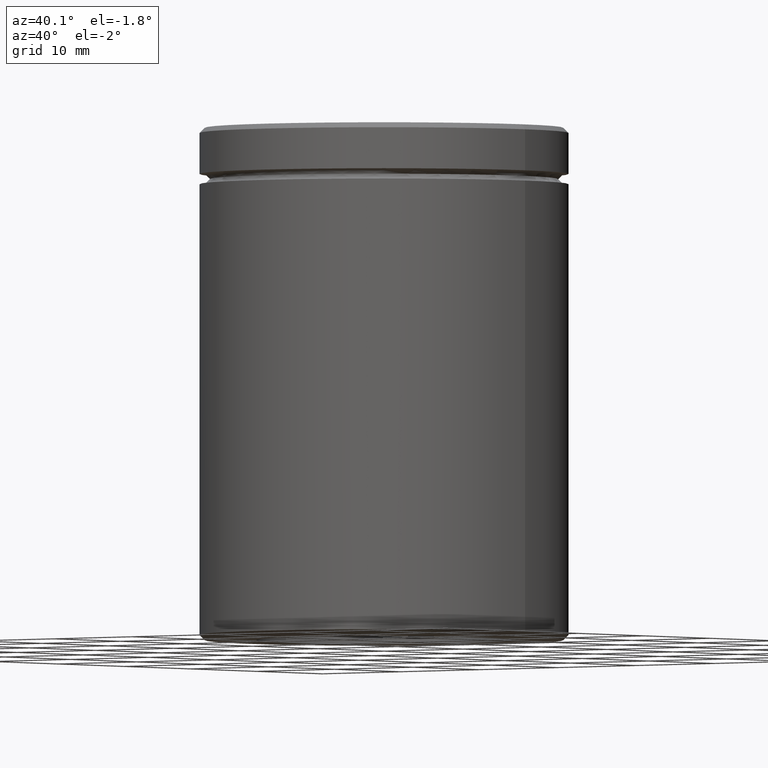
[diagram: clean part render]
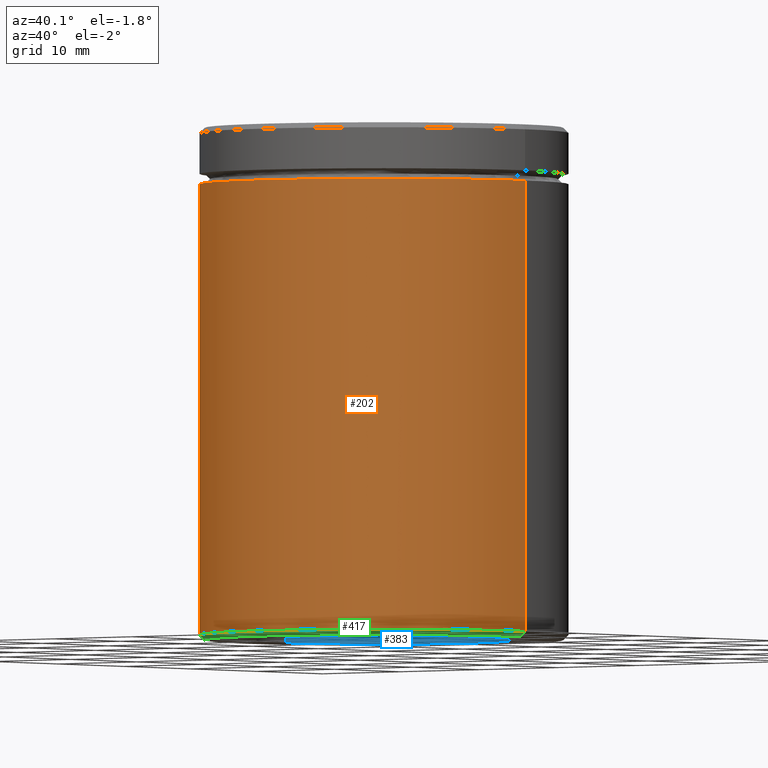
[diagram: same view with three faces highlighted in distinct colors, each labeled with its STEP entity id]
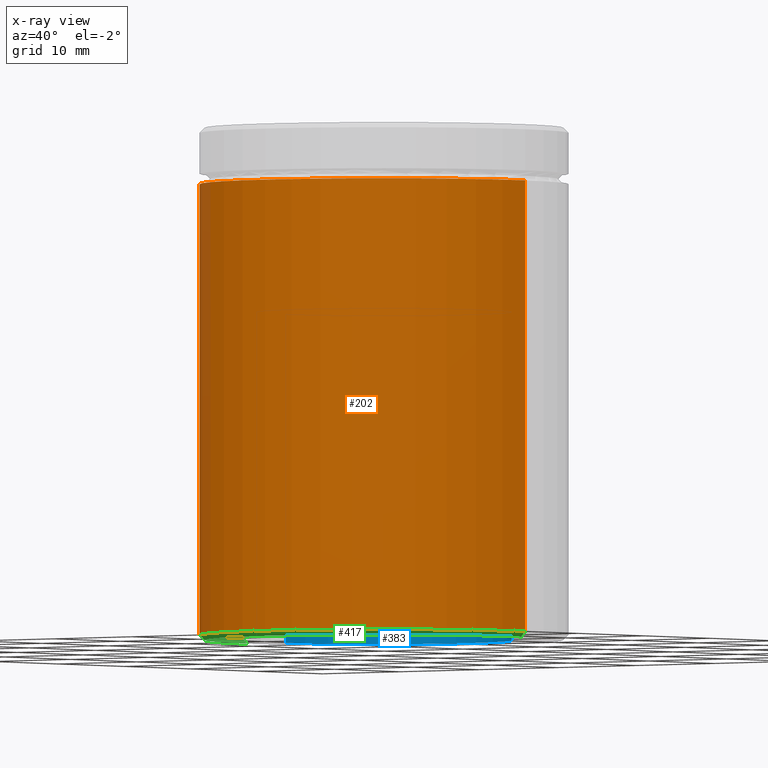
[diagram: x-ray of the same camera — body ghosted, the three highlighted faces saturated]
A machine part, auxiliary view with three faces highlighted in distinct colors.
The next image is the same camera in x-ray (body ghosted, the three faces saturated) — at least one of them is partly hidden behind the body in this view.
Their STEP definitions:

[orange] entity #202 — the highlighted cylindrical surface (partial cylindrical patch) has radius 18 mm, axis along (-0, -0, 1).
#37 = CARTESIAN_POINT ( 'NONE',  ( 18.00000000000000000, 0.000000000000000000, -5.500000000000000000 ) ) ;
#57 = VERTEX_POINT ( 'NONE', #260 ) ;
#85 = CYLINDRICAL_SURFACE ( 'NONE', #564, 18.00000000000000000 ) ;
#88 = FACE_OUTER_BOUND ( 'NONE', #529, .T. ) ;
#108 = VECTOR ( 'NONE', #561, 1000.000000000000000 ) ;
#113 = EDGE_CURVE ( 'NONE', #290, #265, #332, .T. ) ;
#117 = CARTESIAN_POINT ( 'NONE',  ( 18.00000000000000000, 0.000000000000000000, 0.000000000000000000 ) ) ;
#150 = EDGE_CURVE ( 'NONE', #57, #265, #207, .T. ) ;
#156 = CARTESIAN_POINT ( 'NONE',  ( 0.000000000000000000, 0.000000000000000000, -5.500000000000000000 ) ) ;
#170 = DIRECTION ( 'NONE',  ( 1.000000000000000000, 0.000000000000000000, 0.000000000000000000 ) ) ;
#174 = AXIS2_PLACEMENT_3D ( 'NONE', #156, #524, #301 ) ;
#176 = CIRCLE ( 'NONE', #428, 18.00000000000000000 ) ;
#202 = ADVANCED_FACE ( 'NONE', ( #88 ), #85, .T. ) ;
#207 = LINE ( 'NONE', #117, #108 ) ;
#217 = CARTESIAN_POINT ( 'NONE',  ( 0.000000000000000000, 0.000000000000000000, -49.50000000000000000 ) ) ;
#229 = DIRECTION ( 'NONE',  ( -0.000000000000000000, -0.000000000000000000, 1.000000000000000000 ) ) ;
#235 = VECTOR ( 'NONE', #439, 1000.000000000000000 ) ;
#236 = ORIENTED_EDGE ( 'NONE', *, *, #113, .F. ) ;
#259 = CARTESIAN_POINT ( 'NONE',  ( -18.00000000000000000, 2.204364238465235428E-15, -49.50000000000000000 ) ) ;
#260 = CARTESIAN_POINT ( 'NONE',  ( 18.00000000000000000, 0.000000000000000000, -49.50000000000000000 ) ) ;
#265 = VERTEX_POINT ( 'NONE', #37 ) ;
#290 = VERTEX_POINT ( 'NONE', #523 ) ;
#301 = DIRECTION ( 'NONE',  ( 1.000000000000000000, 0.000000000000000000, 0.000000000000000000 ) ) ;
#304 = DIRECTION ( 'NONE',  ( -1.000000000000000000, 0.000000000000000000, 0.000000000000000000 ) ) ;
#317 = EDGE_CURVE ( 'NONE', #405, #290, #560, .T. ) ;
#332 = CIRCLE ( 'NONE', #174, 18.00000000000000000 ) ;
#385 = CARTESIAN_POINT ( 'NONE',  ( -18.00000000000000000, 2.204364238465235428E-15, 0.000000000000000000 ) ) ;
#404 = DIRECTION ( 'NONE',  ( -0.000000000000000000, -0.000000000000000000, 1.000000000000000000 ) ) ;
#405 = VERTEX_POINT ( 'NONE', #259 ) ;
#424 = ORIENTED_EDGE ( 'NONE', *, *, #438, .T. ) ;
#428 = AXIS2_PLACEMENT_3D ( 'NONE', #217, #229, #304 ) ;
#438 = EDGE_CURVE ( 'NONE', #405, #57, #176, .T. ) ;
#439 = DIRECTION ( 'NONE',  ( -0.000000000000000000, -0.000000000000000000, 1.000000000000000000 ) ) ;
#447 = CARTESIAN_POINT ( 'NONE',  ( 0.000000000000000000, 0.000000000000000000, 0.000000000000000000 ) ) ;
#496 = ORIENTED_EDGE ( 'NONE', *, *, #150, .T. ) ;
#523 = CARTESIAN_POINT ( 'NONE',  ( -18.00000000000000000, 2.204364238465235428E-15, -5.500000000000000000 ) ) ;
#524 = DIRECTION ( 'NONE',  ( -0.000000000000000000, -0.000000000000000000, 1.000000000000000000 ) ) ;
#529 = EDGE_LOOP ( 'NONE', ( #545, #424, #496, #236 ) ) ;
#545 = ORIENTED_EDGE ( 'NONE', *, *, #317, .F. ) ;
#560 = LINE ( 'NONE', #385, #235 ) ;
#561 = DIRECTION ( 'NONE',  ( -0.000000000000000000, -0.000000000000000000, 1.000000000000000000 ) ) ;
#564 = AXIS2_PLACEMENT_3D ( 'NONE', #447, #404, #170 ) ;

[blue] entity #383 — the highlighted cylindrical surface (partial cylindrical patch) has radius 12.5 mm, axis along (-0, -0, -1).
#5 = DIRECTION ( 'NONE',  ( -0.000000000000000000, -0.000000000000000000, -1.000000000000000000 ) ) ;
#30 = CARTESIAN_POINT ( 'NONE',  ( 12.50000000000000000, 1.530808498934191521E-15, -18.00000000000000355 ) ) ;
#46 = CARTESIAN_POINT ( 'NONE',  ( -12.50000000000000000, 0.000000000000000000, -18.00000000000000355 ) ) ;
#51 = VECTOR ( 'NONE', #5, 1000.000000000000000 ) ;
#59 = AXIS2_PLACEMENT_3D ( 'NONE', #533, #221, #489 ) ;
#73 = DIRECTION ( 'NONE',  ( -1.000000000000000000, 0.000000000000000000, 0.000000000000000000 ) ) ;
#91 = DIRECTION ( 'NONE',  ( 0.000000000000000000, 0.000000000000000000, -1.000000000000000000 ) ) ;
#130 = CARTESIAN_POINT ( 'NONE',  ( 0.000000000000000000, 0.000000000000000000, -50.00000000000000000 ) ) ;
#144 = EDGE_LOOP ( 'NONE', ( #184, #471, #247, #193 ) ) ;
#155 = AXIS2_PLACEMENT_3D ( 'NONE', #160, #296, #73 ) ;
#160 = CARTESIAN_POINT ( 'NONE',  ( 0.000000000000000000, 0.000000000000000000, -18.00000000000000355 ) ) ;
#184 = ORIENTED_EDGE ( 'NONE', *, *, #271, .F. ) ;
#193 = ORIENTED_EDGE ( 'NONE', *, *, #243, .T. ) ;
#195 = EDGE_CURVE ( 'NONE', #506, #318, #254, .T. ) ;
#205 = CIRCLE ( 'NONE', #328, 12.50000000000000000 ) ;
#208 = CARTESIAN_POINT ( 'NONE',  ( 12.50000000000000000, 1.530808498934191521E-15, -18.00000000000000355 ) ) ;
#221 = DIRECTION ( 'NONE',  ( 0.000000000000000000, 0.000000000000000000, -1.000000000000000000 ) ) ;
#233 = EDGE_CURVE ( 'NONE', #506, #499, #450, .T. ) ;
#243 = EDGE_CURVE ( 'NONE', #499, #356, #205, .T. ) ;
#247 = ORIENTED_EDGE ( 'NONE', *, *, #233, .T. ) ;
#251 = LINE ( 'NONE', #208, #284 ) ;
#254 = CIRCLE ( 'NONE', #59, 12.50000000000000000 ) ;
#271 = EDGE_CURVE ( 'NONE', #318, #356, #251, .T. ) ;
#284 = VECTOR ( 'NONE', #480, 1000.000000000000000 ) ;
#296 = DIRECTION ( 'NONE',  ( -0.000000000000000000, -0.000000000000000000, -1.000000000000000000 ) ) ;
#311 = CARTESIAN_POINT ( 'NONE',  ( -12.50000000000000000, 0.000000000000000000, -50.00000000000000000 ) ) ;
#318 = VERTEX_POINT ( 'NONE', #30 ) ;
#328 = AXIS2_PLACEMENT_3D ( 'NONE', #130, #91, #452 ) ;
#339 = CARTESIAN_POINT ( 'NONE',  ( 12.50000000000000000, 1.530808498934191521E-15, -50.00000000000000000 ) ) ;
#347 = CYLINDRICAL_SURFACE ( 'NONE', #155, 12.50000000000000000 ) ;
#356 = VERTEX_POINT ( 'NONE', #339 ) ;
#383 = ADVANCED_FACE ( 'NONE', ( #562 ), #347, .F. ) ;
#450 = LINE ( 'NONE', #46, #51 ) ;
#451 = CARTESIAN_POINT ( 'NONE',  ( -12.50000000000000000, 0.000000000000000000, -18.00000000000000355 ) ) ;
#452 = DIRECTION ( 'NONE',  ( -1.000000000000000000, 0.000000000000000000, 0.000000000000000000 ) ) ;
#471 = ORIENTED_EDGE ( 'NONE', *, *, #195, .F. ) ;
#480 = DIRECTION ( 'NONE',  ( -0.000000000000000000, -0.000000000000000000, -1.000000000000000000 ) ) ;
#489 = DIRECTION ( 'NONE',  ( -1.000000000000000000, 0.000000000000000000, 0.000000000000000000 ) ) ;
#499 = VERTEX_POINT ( 'NONE', #311 ) ;
#506 = VERTEX_POINT ( 'NONE', #451 ) ;
#533 = CARTESIAN_POINT ( 'NONE',  ( 0.000000000000000000, 0.000000000000000000, -18.00000000000000355 ) ) ;
#562 = FACE_OUTER_BOUND ( 'NONE', #144, .T. ) ;

[green] entity #417 — the highlighted conical surface has half-angle 45 deg.
#42 = CARTESIAN_POINT ( 'NONE',  ( -17.50000000000000000, 2.173748068486551641E-15, -50.00000000000000000 ) ) ;
#52 = VECTOR ( 'NONE', #494, 1000.000000000000114 ) ;
#57 = VERTEX_POINT ( 'NONE', #260 ) ;
#75 = DIRECTION ( 'NONE',  ( 1.000000000000000000, 0.000000000000000000, 0.000000000000000000 ) ) ;
#86 = CIRCLE ( 'NONE', #482, 17.50000000000000000 ) ;
#87 = CARTESIAN_POINT ( 'NONE',  ( 18.00000000000000000, 0.000000000000000000, -49.50000000000000000 ) ) ;
#94 = VERTEX_POINT ( 'NONE', #517 ) ;
#95 = LINE ( 'NONE', #527, #52 ) ;
#96 = AXIS2_PLACEMENT_3D ( 'NONE', #555, #388, #75 ) ;
#176 = CIRCLE ( 'NONE', #428, 18.00000000000000000 ) ;
#204 = FACE_OUTER_BOUND ( 'NONE', #459, .T. ) ;
#215 = CONICAL_SURFACE ( 'NONE', #96, 18.00000000000000000, 0.7853981633974447263 ) ;
#217 = CARTESIAN_POINT ( 'NONE',  ( 0.000000000000000000, 0.000000000000000000, -49.50000000000000000 ) ) ;
#229 = DIRECTION ( 'NONE',  ( -0.000000000000000000, -0.000000000000000000, 1.000000000000000000 ) ) ;
#259 = CARTESIAN_POINT ( 'NONE',  ( -18.00000000000000000, 2.204364238465235428E-15, -49.50000000000000000 ) ) ;
#260 = CARTESIAN_POINT ( 'NONE',  ( 18.00000000000000000, 0.000000000000000000, -49.50000000000000000 ) ) ;
#270 = DIRECTION ( 'NONE',  ( 0.7071067811865451302, 0.000000000000000000, 0.7071067811865500152 ) ) ;
#304 = DIRECTION ( 'NONE',  ( -1.000000000000000000, 0.000000000000000000, 0.000000000000000000 ) ) ;
#370 = ORIENTED_EDGE ( 'NONE', *, *, #478, .F. ) ;
#372 = ORIENTED_EDGE ( 'NONE', *, *, #438, .F. ) ;
#388 = DIRECTION ( 'NONE',  ( -0.000000000000000000, -0.000000000000000000, 1.000000000000000000 ) ) ;
#403 = CARTESIAN_POINT ( 'NONE',  ( 0.000000000000000000, 0.000000000000000000, -50.00000000000000000 ) ) ;
#405 = VERTEX_POINT ( 'NONE', #259 ) ;
#417 = ADVANCED_FACE ( 'NONE', ( #204 ), #215, .T. ) ;
#428 = AXIS2_PLACEMENT_3D ( 'NONE', #217, #229, #304 ) ;
#429 = EDGE_CURVE ( 'NONE', #94, #57, #535, .T. ) ;
#430 = ORIENTED_EDGE ( 'NONE', *, *, #508, .F. ) ;
#438 = EDGE_CURVE ( 'NONE', #405, #57, #176, .T. ) ;
#457 = VECTOR ( 'NONE', #270, 1000.000000000000114 ) ;
#459 = EDGE_LOOP ( 'NONE', ( #430, #370, #501, #372 ) ) ;
#478 = EDGE_CURVE ( 'NONE', #94, #509, #86, .T. ) ;
#482 = AXIS2_PLACEMENT_3D ( 'NONE', #403, #531, #538 ) ;
#494 = DIRECTION ( 'NONE',  ( -0.7071067811865451302, 8.659560562354903276E-17, 0.7071067811865500152 ) ) ;
#501 = ORIENTED_EDGE ( 'NONE', *, *, #429, .T. ) ;
#508 = EDGE_CURVE ( 'NONE', #509, #405, #95, .T. ) ;
#509 = VERTEX_POINT ( 'NONE', #42 ) ;
#517 = CARTESIAN_POINT ( 'NONE',  ( 17.50000000000000000, 0.000000000000000000, -50.00000000000000000 ) ) ;
#527 = CARTESIAN_POINT ( 'NONE',  ( -18.00000000000000000, 2.204364238465235428E-15, -49.50000000000000000 ) ) ;
#531 = DIRECTION ( 'NONE',  ( 0.000000000000000000, 0.000000000000000000, -1.000000000000000000 ) ) ;
#535 = LINE ( 'NONE', #87, #457 ) ;
#538 = DIRECTION ( 'NONE',  ( -1.000000000000000000, 0.000000000000000000, 0.000000000000000000 ) ) ;
#555 = CARTESIAN_POINT ( 'NONE',  ( 0.000000000000000000, 0.000000000000000000, -49.50000000000000000 ) ) ;